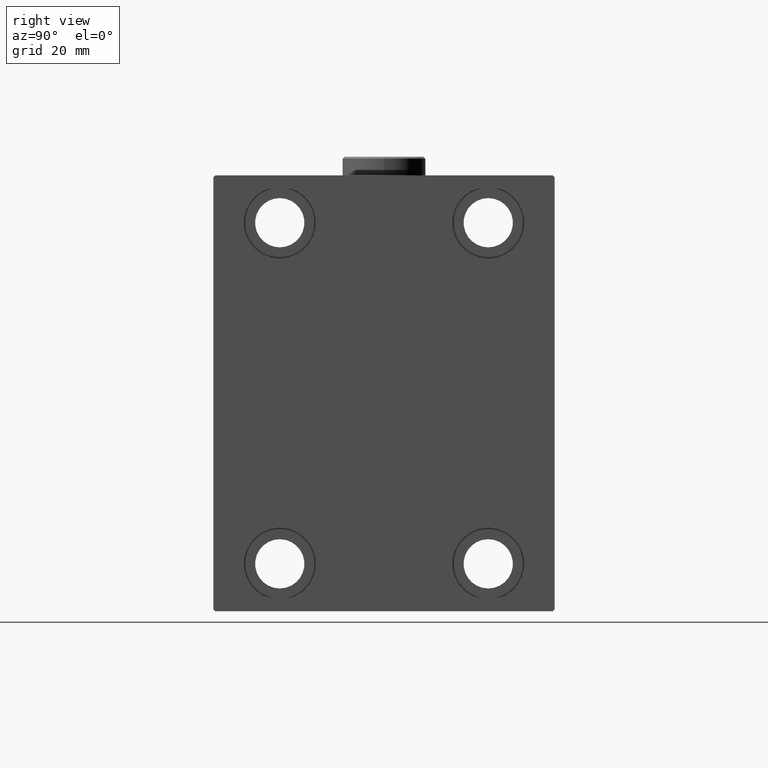
[diagram: clean part render]
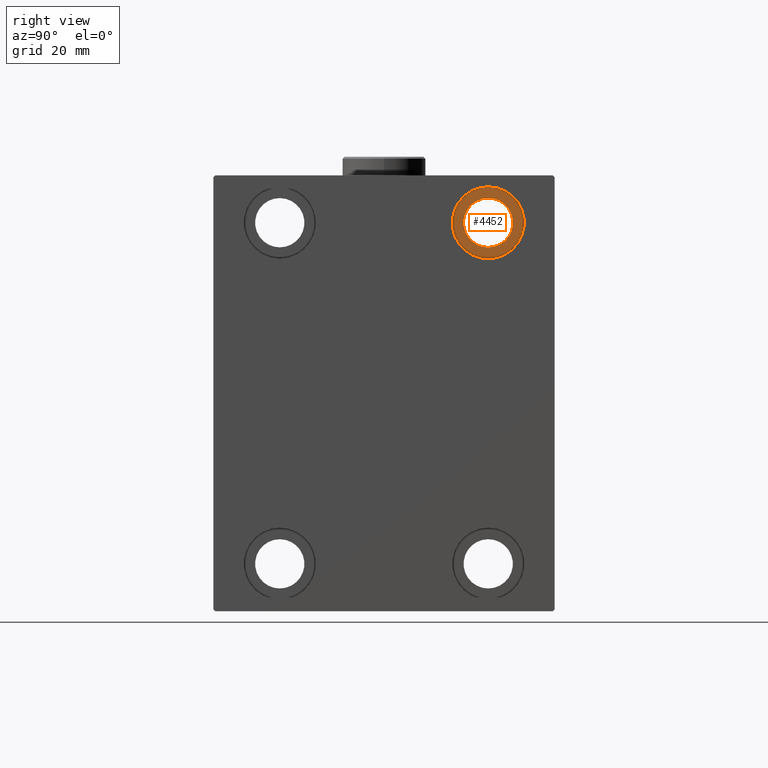
[diagram: same view with one face highlighted and labeled with its STEP entity id]
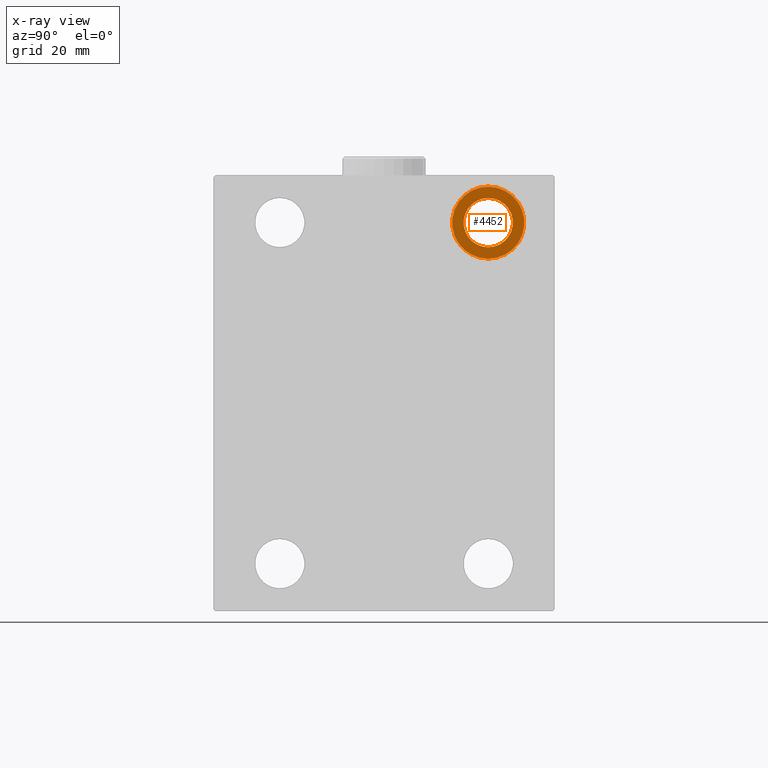
[diagram: x-ray of the same camera — body ghosted, the highlighted face saturated]
A machine part, right view. The second image highlights one B-rep face of the part: STEP entity #4452.
The next image is the same camera in x-ray: the body ghosted, the highlighted face saturated — about 0% of this face is hidden behind the body in this view.
In plain terms, the highlighted planar face has unit normal (1, 0, 0).
Its self-contained STEP definition (entity closure, byte-faithful):
#623 = CARTESIAN_POINT ( 'NONE',  ( 95.00000000000000000, 27.50000000000001066, 45.00000000000000711 ) ) ;
#1306 = EDGE_LOOP ( 'NONE', ( #6331, #23565 ) ) ;
#3066 = AXIS2_PLACEMENT_3D ( 'NONE', #34209, #19988, #26636 ) ;
#3127 = EDGE_CURVE ( 'NONE', #17969, #35968, #27908, .T. ) ;
#3130 = CIRCLE ( 'NONE', #26496, 6.499999999999999112 ) ;
#3704 = CIRCLE ( 'NONE', #15384, 9.500000000000001776 ) ;
#4074 = DIRECTION ( 'NONE',  ( -1.000000000000000000, -0.000000000000000000, -0.000000000000000000 ) ) ;
#4104 = CIRCLE ( 'NONE', #12871, 6.499999999999999112 ) ;
#4452 = ADVANCED_FACE ( 'NONE', ( #43788, #44249 ), #9646, .T. ) ;
#6331 = ORIENTED_EDGE ( 'NONE', *, *, #29829, .F. ) ;
#9646 = PLANE ( 'NONE',  #14874 ) ;
#9845 = CARTESIAN_POINT ( 'NONE',  ( 95.00000000000000000, 27.50000000000001066, 54.50000000000000711 ) ) ;
#12391 = CARTESIAN_POINT ( 'NONE',  ( 95.00000000000000000, 0.000000000000000000, 0.000000000000000000 ) ) ;
#12624 = CARTESIAN_POINT ( 'NONE',  ( 95.00000000000000000, 27.50000000000001066, 45.00000000000000711 ) ) ;
#12871 = AXIS2_PLACEMENT_3D ( 'NONE', #623, #4074, #21016 ) ;
#13731 = CARTESIAN_POINT ( 'NONE',  ( 95.00000000000000000, 27.50000000000001066, 38.50000000000000711 ) ) ;
#13861 = EDGE_CURVE ( 'NONE', #27997, #36107, #4104, .T. ) ;
#14874 = AXIS2_PLACEMENT_3D ( 'NONE', #12391, #27266, #33696 ) ;
#15384 = AXIS2_PLACEMENT_3D ( 'NONE', #12624, #40814, #23378 ) ;
#17312 = CARTESIAN_POINT ( 'NONE',  ( 95.00000000000000000, 27.50000000000001066, 45.00000000000000711 ) ) ;
#17969 = VERTEX_POINT ( 'NONE', #9845 ) ;
#19988 = DIRECTION ( 'NONE',  ( -1.000000000000000000, -0.000000000000000000, -0.000000000000000000 ) ) ;
#20664 = EDGE_LOOP ( 'NONE', ( #31711, #37939 ) ) ;
#21016 = DIRECTION ( 'NONE',  ( 0.000000000000000000, 0.000000000000000000, -1.000000000000000000 ) ) ;
#23378 = DIRECTION ( 'NONE',  ( 0.000000000000000000, 0.000000000000000000, 1.000000000000000000 ) ) ;
#23565 = ORIENTED_EDGE ( 'NONE', *, *, #3127, .F. ) ;
#23946 = DIRECTION ( 'NONE',  ( 0.000000000000000000, 0.000000000000000000, -1.000000000000000000 ) ) ;
#26496 = AXIS2_PLACEMENT_3D ( 'NONE', #17312, #41172, #23946 ) ;
#26636 = DIRECTION ( 'NONE',  ( 0.000000000000000000, 0.000000000000000000, 1.000000000000000000 ) ) ;
#27266 = DIRECTION ( 'NONE',  ( 1.000000000000000000, 0.000000000000000000, -0.000000000000000000 ) ) ;
#27908 = CIRCLE ( 'NONE', #3066, 9.500000000000001776 ) ;
#27997 = VERTEX_POINT ( 'NONE', #13731 ) ;
#28615 = CARTESIAN_POINT ( 'NONE',  ( 95.00000000000000000, 27.50000000000001066, 51.50000000000000711 ) ) ;
#29829 = EDGE_CURVE ( 'NONE', #35968, #17969, #3704, .T. ) ;
#31711 = ORIENTED_EDGE ( 'NONE', *, *, #38092, .T. ) ;
#33696 = DIRECTION ( 'NONE',  ( 0.000000000000000000, 0.000000000000000000, 1.000000000000000000 ) ) ;
#34209 = CARTESIAN_POINT ( 'NONE',  ( 95.00000000000000000, 27.50000000000001066, 45.00000000000000711 ) ) ;
#35968 = VERTEX_POINT ( 'NONE', #44010 ) ;
#36107 = VERTEX_POINT ( 'NONE', #28615 ) ;
#37939 = ORIENTED_EDGE ( 'NONE', *, *, #13861, .T. ) ;
#38092 = EDGE_CURVE ( 'NONE', #36107, #27997, #3130, .T. ) ;
#40814 = DIRECTION ( 'NONE',  ( -1.000000000000000000, -0.000000000000000000, -0.000000000000000000 ) ) ;
#41172 = DIRECTION ( 'NONE',  ( -1.000000000000000000, -0.000000000000000000, -0.000000000000000000 ) ) ;
#43788 = FACE_OUTER_BOUND ( 'NONE', #1306, .T. ) ;
#44010 = CARTESIAN_POINT ( 'NONE',  ( 95.00000000000000000, 27.50000000000001066, 35.50000000000000711 ) ) ;
#44249 = FACE_BOUND ( 'NONE', #20664, .T. ) ;